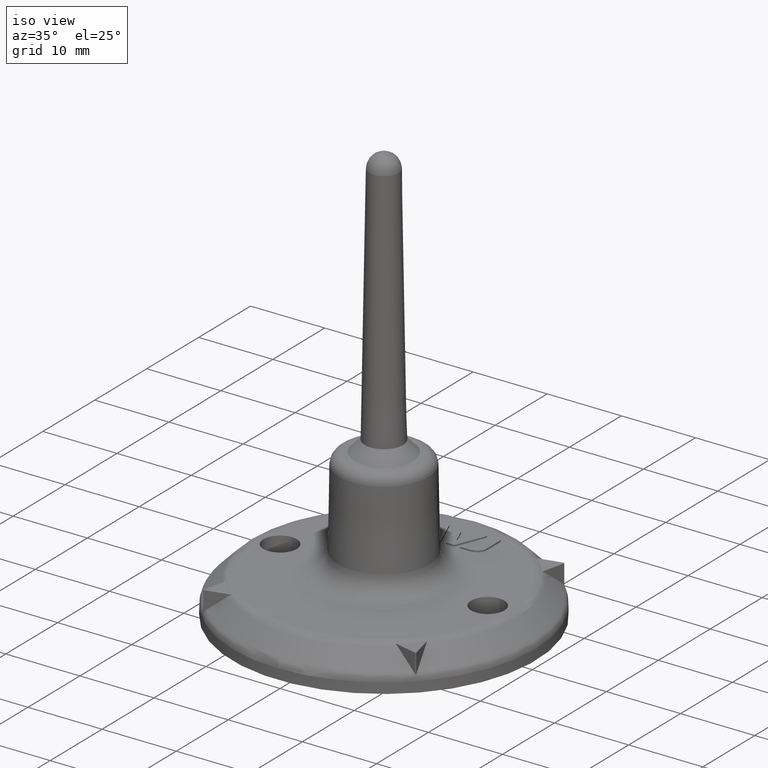
[diagram: clean part render]
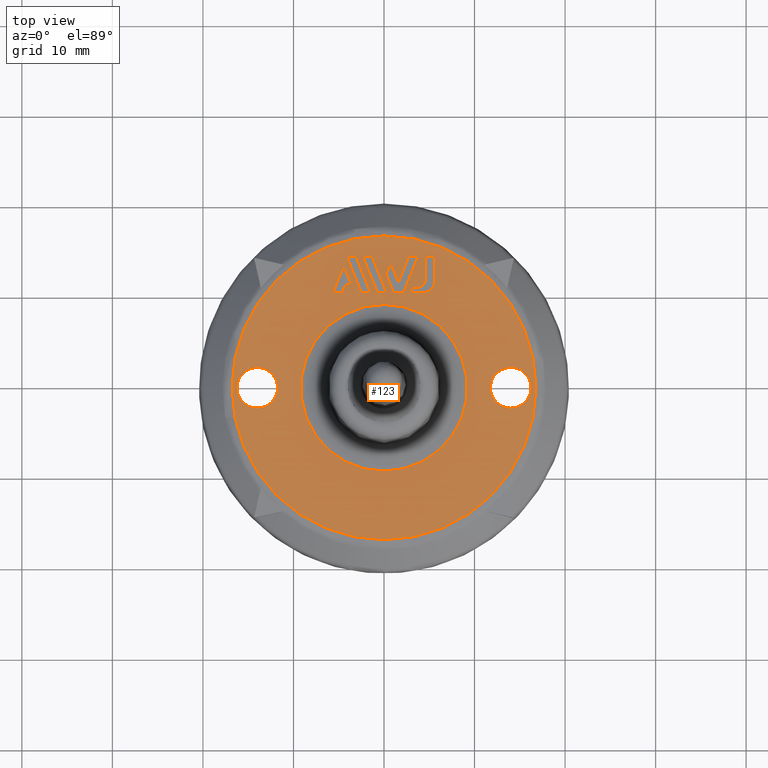
[diagram: tour spotlight — one face highlighted and labeled with its STEP entity id]
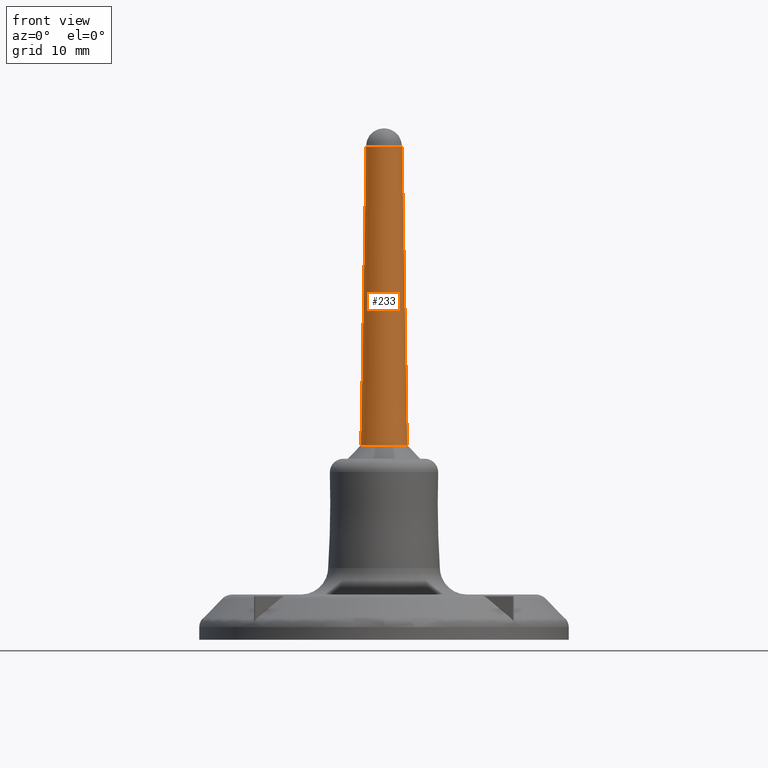
[diagram: tour spotlight — one face highlighted and labeled with its STEP entity id]
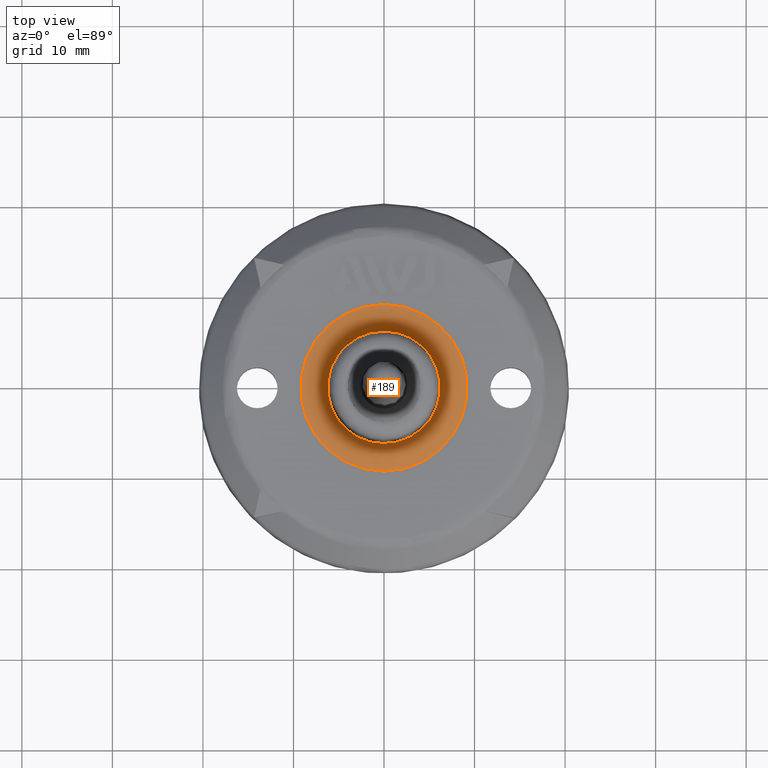
[diagram: tour spotlight — one face highlighted and labeled with its STEP entity id]
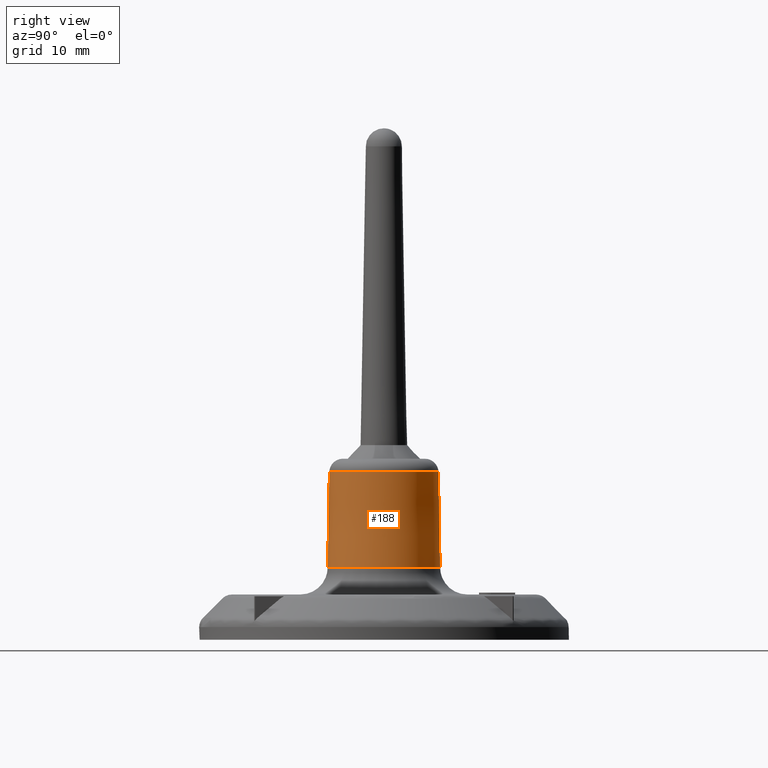
[diagram: tour spotlight — one face highlighted and labeled with its STEP entity id]
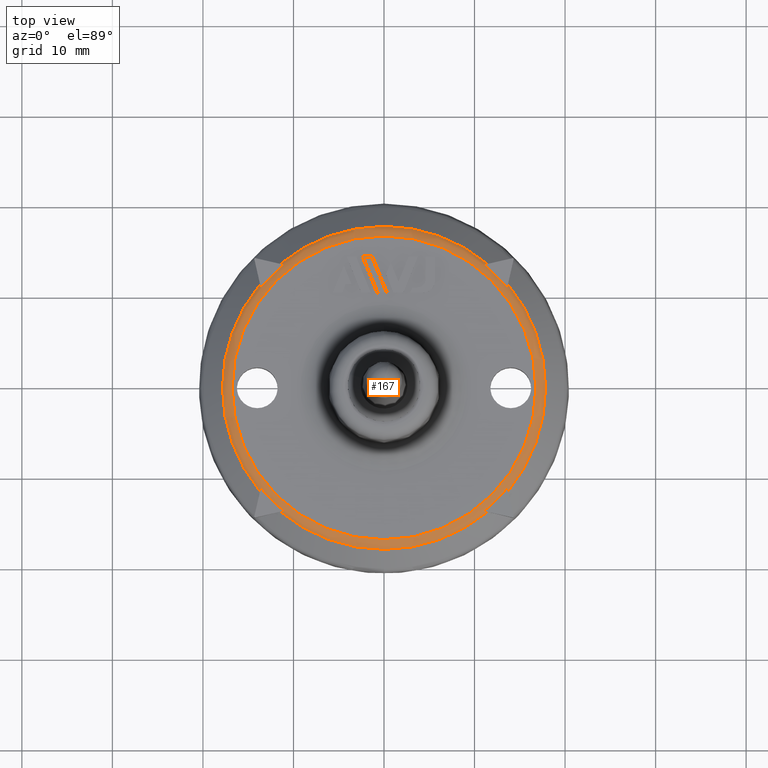
[diagram: tour spotlight — one face highlighted and labeled with its STEP entity id]
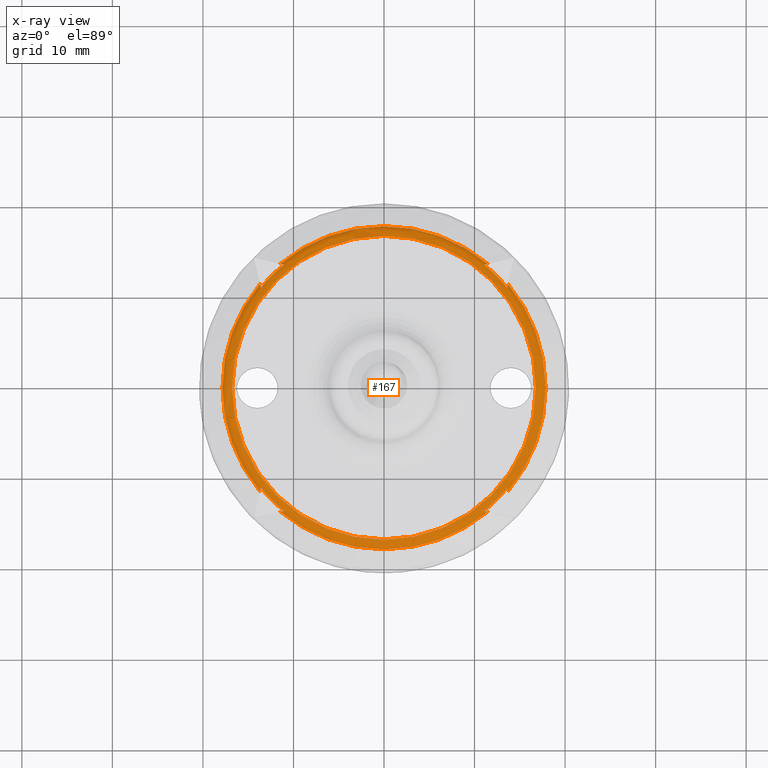
[diagram: x-ray of the same camera — body ghosted, this tour face saturated]
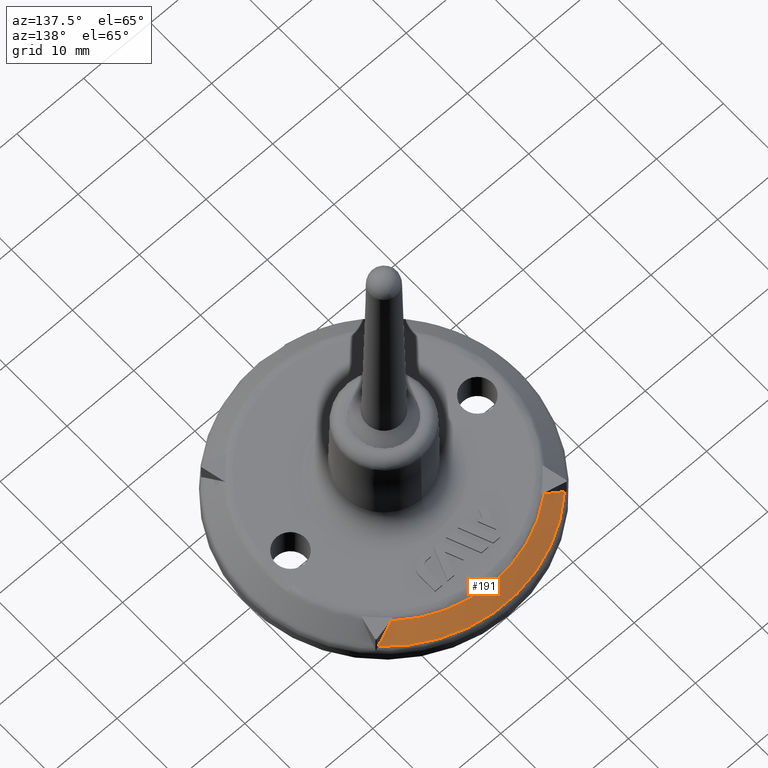
[diagram: tour spotlight — one face highlighted and labeled with its STEP entity id]
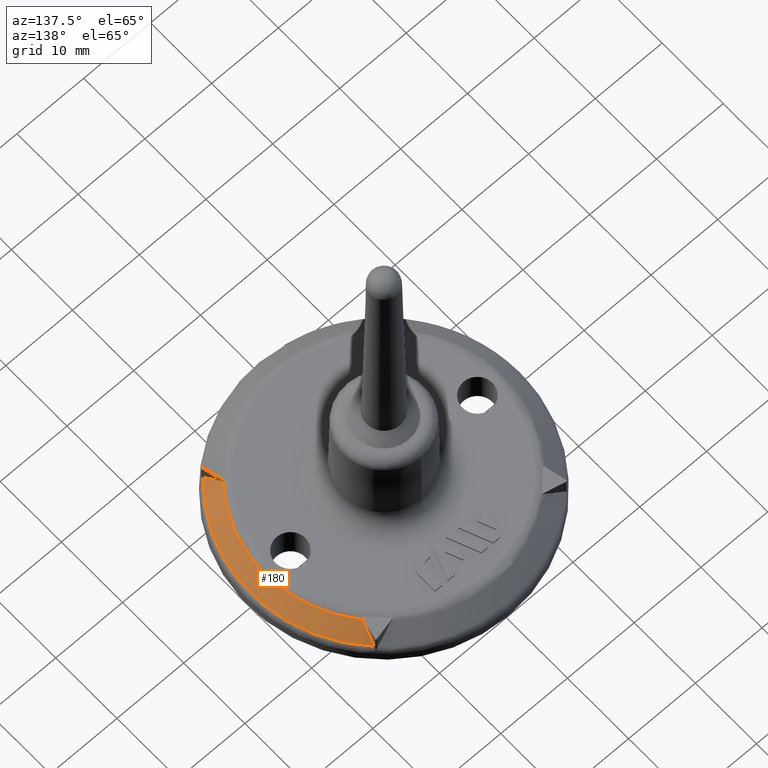
[diagram: tour spotlight — one face highlighted and labeled with its STEP entity id]
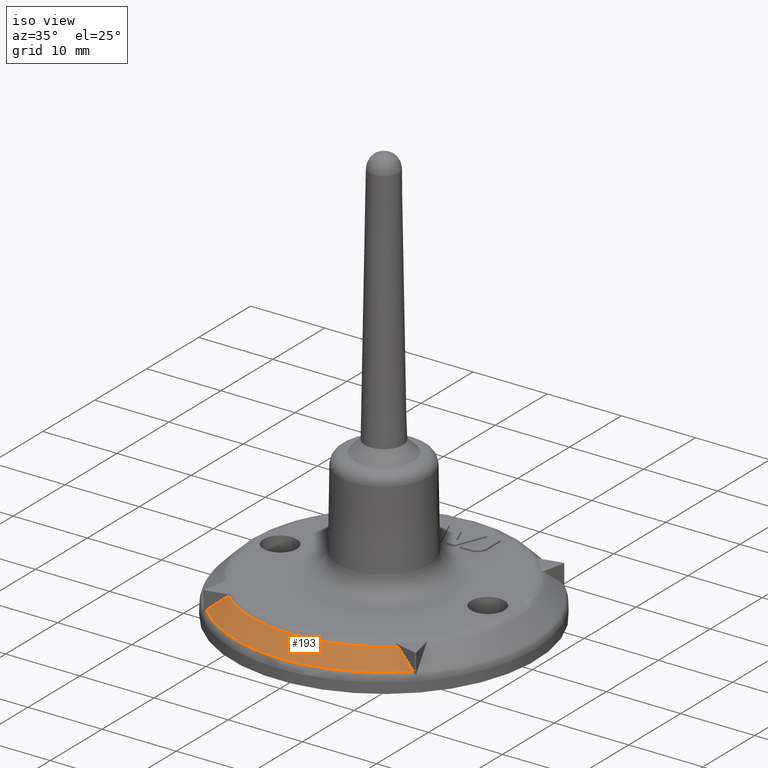
[diagram: tour spotlight — one face highlighted and labeled with its STEP entity id]
A machine part: a face-by-face anatomy tour. The part has 118 B-rep faces; the first image is the clean iso view, then the 8 largest visible faces are spotlighted one at a time (largest first), each with its STEP entity span.

Face 1 — top view, entity #123. In plain terms, the highlighted planar face has unit normal (0, -0, -1).
Definition (entity closure, byte-faithful):
#123 = ADVANCED_FACE( '', ( #242, #243, #244, #245, #246, #247, #248, #249, #250 ), #251, .F. );
#242 = FACE_BOUND( '', #518, .T. );
#243 = FACE_BOUND( '', #519, .T. );
#244 = FACE_BOUND( '', #520, .T. );
#245 = FACE_BOUND( '', #521, .T. );
#246 = FACE_OUTER_BOUND( '', #522, .T. );
#247 = FACE_BOUND( '', #523, .T. );
#248 = FACE_BOUND( '', #524, .T. );
#249 = FACE_BOUND( '', #525, .T. );
#250 = FACE_BOUND( '', #526, .T. );
#251 = PLANE( '', #527 );
#518 = EDGE_LOOP( '', ( #794, #795, #796, #797, #798, #799, #800, #801 ) );
#519 = EDGE_LOOP( '', ( #802, #803, #804, #805 ) );
#520 = EDGE_LOOP( '', ( #806 ) );
#521 = EDGE_LOOP( '', ( #807 ) );
#522 = EDGE_LOOP( '', ( #808 ) );
#523 = EDGE_LOOP( '', ( #809 ) );
#524 = EDGE_LOOP( '', ( #810, #811, #812, #813 ) );
#525 = EDGE_LOOP( '', ( #814, #815, #816, #817, #818, #819, #820 ) );
#526 = EDGE_LOOP( '', ( #821, #822, #823, #824, #825 ) );
#527 = AXIS2_PLACEMENT_3D( '', #826, #827, #828 );
#794 = ORIENTED_EDGE( '', *, *, #1678, .F. );
#795 = ORIENTED_EDGE( '', *, *, #1679, .F. );
#796 = ORIENTED_EDGE( '', *, *, #1680, .F. );
#797 = ORIENTED_EDGE( '', *, *, #1681, .F. );
#798 = ORIENTED_EDGE( '', *, *, #1682, .F. );
#799 = ORIENTED_EDGE( '', *, *, #1683, .F. );
#800 = ORIENTED_EDGE( '', *, *, #1684, .F. );
#801 = ORIENTED_EDGE( '', *, *, #1685, .F. );
#802 = ORIENTED_EDGE( '', *, *, #1686, .F. );
#803 = ORIENTED_EDGE( '', *, *, #1687, .F. );
#804 = ORIENTED_EDGE( '', *, *, #1688, .F. );
#805 = ORIENTED_EDGE( '', *, *, #1689, .F. );
#806 = ORIENTED_EDGE( '', *, *, #1690, .F. );
#807 = ORIENTED_EDGE( '', *, *, #1691, .T. );
#808 = ORIENTED_EDGE( '', *, *, #1692, .T. );
#809 = ORIENTED_EDGE( '', *, *, #1693, .F. );
#810 = ORIENTED_EDGE( '', *, *, #1694, .F. );
#811 = ORIENTED_EDGE( '', *, *, #1695, .F. );
#812 = ORIENTED_EDGE( '', *, *, #1696, .F. );
#813 = ORIENTED_EDGE( '', *, *, #1697, .F. );
#814 = ORIENTED_EDGE( '', *, *, #1698, .F. );
#815 = ORIENTED_EDGE( '', *, *, #1699, .F. );
#816 = ORIENTED_EDGE( '', *, *, #1700, .F. );
#817 = ORIENTED_EDGE( '', *, *, #1701, .F. );
#818 = ORIENTED_EDGE( '', *, *, #1702, .F. );
#819 = ORIENTED_EDGE( '', *, *, #1703, .F. );
#820 = ORIENTED_EDGE( '', *, *, #1704, .F. );
#821 = ORIENTED_EDGE( '', *, *, #1705, .F. );
#822 = ORIENTED_EDGE( '', *, *, #1706, .F. );
#823 = ORIENTED_EDGE( '', *, *, #1707, .F. );
#824 = ORIENTED_EDGE( '', *, *, #1708, .F. );
#825 = ORIENTED_EDGE( '', *, *, #1709, .F. );
#826 = CARTESIAN_POINT( '', ( 6.26367410396015, 1.30196443740726E-015, 4.99990699999999 ) );
#827 = DIRECTION( '', ( 1.12474554136660E-032, -1.83690953073357E-016, -1.00000000000000 ) );
#828 = DIRECTION( '', ( -6.12303176911189E-017, 1.00000000000000, -1.83690953073357E-016 ) );
#1678 = EDGE_CURVE( '', #1943, #1944, #1945, .F. );
#1679 = EDGE_CURVE( '', #1946, #1943, #1947, .T. );
#1680 = EDGE_CURVE( '', #1948, #1946, #1949, .T. );
#1681 = EDGE_CURVE( '', #1950, #1948, #1951, .T. );
#1682 = EDGE_CURVE( '', #1952, #1950, #1953, .T. );
#1683 = EDGE_CURVE( '', #1954, #1952, #1955, .T. );
#1684 = EDGE_CURVE( '', #1956, #1954, #1957, .T. );
#1685 = EDGE_CURVE( '', #1944, #1956, #1958, .T. );
#1686 = EDGE_CURVE( '', #1959, #1960, #1961, .T. );
#1687 = EDGE_CURVE( '', #1962, #1959, #1963, .T. );
#1688 = EDGE_CURVE( '', #1964, #1962, #1965, .T. );
#1689 = EDGE_CURVE( '', #1960, #1964, #1966, .T. );
#1690 = EDGE_CURVE( '', #1967, #1967, #1968, .F. );
#1691 = EDGE_CURVE( '', #1969, #1969, #1970, .T. );
#1692 = EDGE_CURVE( '', #1971, #1971, #1972, .F. );
#1693 = EDGE_CURVE( '', #1973, #1973, #1974, .F. );
#1694 = EDGE_CURVE( '', #1975, #1976, #1977, .T. );
#1695 = EDGE_CURVE( '', #1978, #1975, #1979, .T. );
#1696 = EDGE_CURVE( '', #1980, #1978, #1981, .T. );
#1697 = EDGE_CURVE( '', #1976, #1980, #1982, .T. );
#1698 = EDGE_CURVE( '', #1983, #1984, #1985, .T. );
#1699 = EDGE_CURVE( '', #1986, #1983, #1987, .T. );
#1700 = EDGE_CURVE( '', #1988, #1986, #1989, .T. );
#1701 = EDGE_CURVE( '', #1990, #1988, #1991, .T. );
#1702 = EDGE_CURVE( '', #1992, #1990, #1993, .T. );
#1703 = EDGE_CURVE( '', #1994, #1992, #1995, .T. );
#1704 = EDGE_CURVE( '', #1984, #1994, #1996, .T. );
#1705 = EDGE_CURVE( '', #1997, #1998, #1999, .T. );
#1706 = EDGE_CURVE( '', #2000, #1997, #2001, .T. );
#1707 = EDGE_CURVE( '', #2002, #2000, #2003, .T. );
#1708 = EDGE_CURVE( '', #2004, #2002, #2005, .T. );
#1709 = EDGE_CURVE( '', #1998, #2004, #2006, .T. );
#1943 = VERTEX_POINT( '', #2393 );
#1944 = VERTEX_POINT( '', #2394 );
#1945 = CIRCLE( '', #2395, 1.33440000000000 );
#1946 = VERTEX_POINT( '', #2396 );
#1947 = LINE( '', #2397, #2398 );
#1948 = VERTEX_POINT( '', #2399 );
#1949 = LINE( '', #2400, #2401 );
#1950 = VERTEX_POINT( '', #2402 );
#1951 = LINE( '', #2403, #2404 );
#1952 = VERTEX_POINT( '', #2405 );
#1953 = CIRCLE( '', #2406, 0.889599999999995 );
#1954 = VERTEX_POINT( '', #2407 );
#1955 = LINE( '', #2408, #2409 );
#1956 = VERTEX_POINT( '', #2410 );
#1957 = LINE( '', #2411, #2412 );
#1958 = LINE( '', #2413, #2414 );
#1959 = VERTEX_POINT( '', #2415 );
#1960 = VERTEX_POINT( '', #2416 );
#1961 = LINE( '', #2417, #2418 );
#1962 = VERTEX_POINT( '', #2419 );
#1963 = LINE( '', #2420, #2421 );
#1964 = VERTEX_POINT( '', #2422 );
#1965 = LINE( '', #2423, #2424 );
#1966 = LINE( '', #2425, #2426 );
#1967 = VERTEX_POINT( '', #2427 );
#1968 = CIRCLE( '', #2428, 2.25000000000001 );
#1969 = VERTEX_POINT( '', #2429 );
#1970 = CIRCLE( '', #2430, 9.20784984471370 );
#1971 = VERTEX_POINT( '', #2431 );
#1972 = CIRCLE( '', #2432, 16.7792036051656 );
#1973 = VERTEX_POINT( '', #2433 );
#1974 = CIRCLE( '', #2434, 2.25000000000000 );
#1975 = VERTEX_POINT( '', #2435 );
#1976 = VERTEX_POINT( '', #2436 );
#1977 = LINE( '', #2437, #2438 );
#1978 = VERTEX_POINT( '', #2439 );
#1979 = LINE( '', #2440, #2441 );
#1980 = VERTEX_POINT( '', #2442 );
#1981 = LINE( '', #2443, #2444 );
#1982 = LINE( '', #2445, #2446 );
#1983 = VERTEX_POINT( '', #2447 );
#1984 = VERTEX_POINT( '', #2448 );
#1985 = LINE( '', #2449, #2450 );
#1986 = VERTEX_POINT( '', #2451 );
#1987 = LINE( '', #2452, #2453 );
#1988 = VERTEX_POINT( '', #2454 );
#1989 = LINE( '', #2455, #2456 );
#1990 = VERTEX_POINT( '', #2457 );
#1991 = LINE( '', #2458, #2459 );
#1992 = VERTEX_POINT( '', #2460 );
#1993 = LINE( '', #2461, #2462 );
#1994 = VERTEX_POINT( '', #2463 );
#1995 = LINE( '', #2464, #2465 );
#1996 = LINE( '', #2466, #2467 );
#1997 = VERTEX_POINT( '', #2468 );
#1998 = VERTEX_POINT( '', #2469 );
#1999 = LINE( '', #2470, #2471 );
#2000 = VERTEX_POINT( '', #2472 );
#2001 = LINE( '', #2473, #2474 );
#2002 = VERTEX_POINT( '', #2475 );
#2003 = LINE( '', #2476, #2477 );
#2004 = VERTEX_POINT( '', #2478 );
#2005 = LINE( '', #2479, #2480 );
#2006 = LINE( '', #2481, #2482 );
#2393 = CARTESIAN_POINT( '', ( 4.28704891701152, 10.4994000000000, 4.99990699999999 ) );
#2394 = CARTESIAN_POINT( '', ( 5.62144891701152, 11.8338000000000, 4.99990699999999 ) );
#2395 = AXIS2_PLACEMENT_3D( '', #3175, #3176, #3177 );
#2396 = CARTESIAN_POINT( '', ( 2.88317879044305, 10.4994000000000, 4.99990699999999 ) );
#2397 = CARTESIAN_POINT( '', ( 6.26367410396015, 10.4994000000000, 4.99990699999999 ) );
#2398 = VECTOR( '', #3178, 1000.00000000000 );
#2399 = CARTESIAN_POINT( '', ( 3.11820689177645, 11.0811149637937, 4.99990699999999 ) );
#2400 = CARTESIAN_POINT( '', ( -0.289184012132563, 2.64752653307821, 4.99990699999999 ) );
#2401 = VECTOR( '', #3179, 1000.00000000000 );
#2402 = CARTESIAN_POINT( '', ( 3.68641509272283, 11.0811149637937, 4.99990699999999 ) );
#2403 = CARTESIAN_POINT( '', ( 6.26367410396015, 11.0811149637937, 4.99990699999999 ) );
#2404 = VECTOR( '', #3180, 1000.00000000000 );
#2405 = CARTESIAN_POINT( '', ( 4.57601509272282, 11.9707149637937, 4.99990699999999 ) );
#2406 = AXIS2_PLACEMENT_3D( '', #3181, #3182, #3183 );
#2407 = CARTESIAN_POINT( '', ( 4.57601509272282, 14.4996711815567, 4.99990699999999 ) );
#2408 = CARTESIAN_POINT( '', ( 4.57601509272282, 1.30109529971322E-015, 4.99990699999999 ) );
#2409 = VECTOR( '', #3184, 1000.00000000000 );
#2410 = CARTESIAN_POINT( '', ( 5.62144891701152, 14.4996711815567, 4.99990699999999 ) );
#2411 = CARTESIAN_POINT( '', ( 6.26367410396015, 14.4996711815567, 4.99990699999999 ) );
#2412 = VECTOR( '', #3185, 1000.00000000000 );
#2413 = CARTESIAN_POINT( '', ( 5.62144891701152, 1.30163369398437E-015, 4.99990699999999 ) );
#2414 = VECTOR( '', #3186, 1000.00000000000 );
#2415 = CARTESIAN_POINT( '', ( 0.302886043628969, 10.4994000000000, 4.99990699999999 ) );
#2416 = CARTESIAN_POINT( '', ( -1.31350139777566, 14.4996711815567, 4.99990699999999 ) );
#2417 = CARTESIAN_POINT( '', ( 4.78654673523565, -0.596862067544176, 4.99990699999999 ) );
#2418 = VECTOR( '', #3187, 1000.00000000000 );
#2419 = CARTESIAN_POINT( '', ( -0.730811096244652, 10.4994000000000, 4.99990699999999 ) );
#2420 = CARTESIAN_POINT( '', ( 6.26367410396015, 10.4994000000000, 4.99990699999999 ) );
#2421 = VECTOR( '', #3188, 1000.00000000000 );
#2422 = CARTESIAN_POINT( '', ( -2.34719853764928, 14.4996711815567, 4.99990699999999 ) );
#2423 = CARTESIAN_POINT( '', ( 3.89793511116535, -0.955922892234176, 4.99990699999999 ) );
#2424 = VECTOR( '', #3189, 1000.00000000000 );
#2425 = CARTESIAN_POINT( '', ( 6.26367410396015, 14.4996711815567, 4.99990699999999 ) );
#2426 = VECTOR( '', #3190, 1000.00000000000 );
#2427 = CARTESIAN_POINT( '', ( 14.0000000000000, 2.25000000000001, 4.99990699999999 ) );
#2428 = AXIS2_PLACEMENT_3D( '', #3191, #3192, #3193 );
#2429 = CARTESIAN_POINT( '', ( -5.63799571243939E-016, 9.20784984471370, 4.99990699999999 ) );
#2430 = AXIS2_PLACEMENT_3D( '', #3194, #3195, #3196 );
#2431 = CARTESIAN_POINT( '', ( -1.02739596734826E-015, 16.7792036051656, 4.99990699999998 ) );
#2432 = AXIS2_PLACEMENT_3D( '', #3197, #3198, #3199 );
#2433 = CARTESIAN_POINT( '', ( -14.0000000000000, 2.25000000000000, 4.99990699999999 ) );
#2434 = AXIS2_PLACEMENT_3D( '', #3200, #3201, #3202 );
#2435 = CARTESIAN_POINT( '', ( -1.47462014529466, 10.4994000000000, 4.99990699999999 ) );
#2436 = CARTESIAN_POINT( '', ( -3.09100758669929, 14.4996711815567, 4.99990699999999 ) );
#2437 = CARTESIAN_POINT( '', ( 3.25852406746708, -1.21428937141050, 4.99990699999999 ) );
#2438 = VECTOR( '', #3203, 1000.00000000000 );
#2439 = CARTESIAN_POINT( '', ( -2.50824376379507, 10.4994000000000, 4.99990699999999 ) );
#2440 = CARTESIAN_POINT( '', ( 6.26367410396015, 10.4994000000000, 4.99990699999999 ) );
#2441 = VECTOR( '', #3204, 1000.00000000000 );
#2442 = CARTESIAN_POINT( '', ( -4.12440395731886, 14.4996711815567, 4.99990699999999 ) );
#2443 = CARTESIAN_POINT( '', ( 2.36930922852980, -1.57337270526704, 4.99990699999999 ) );
#2444 = VECTOR( '', #3205, 1000.00000000000 );
#2445 = CARTESIAN_POINT( '', ( 6.26367410396015, 14.4996711815567, 4.99990699999999 ) );
#2446 = VECTOR( '', #3206, 1000.00000000000 );
#2447 = CARTESIAN_POINT( '', ( 2.13939647643785, 10.4994000000000, 4.99990699999999 ) );
#2448 = CARTESIAN_POINT( '', ( 3.75552993491683, 14.4996711815567, 4.99990699999999 ) );
#2449 = CARTESIAN_POINT( '', ( -0.928509667739326, 2.90568521618318, 4.99990699999999 ) );
#2450 = VECTOR( '', #3207, 1000.00000000000 );
#2451 = CARTESIAN_POINT( '', ( 1.04666835763417, 10.4994000000000, 4.99990699999999 ) );
#2452 = CARTESIAN_POINT( '', ( 6.26367410396015, 10.4994000000000, 4.99990699999999 ) );
#2453 = VECTOR( '', #3208, 1000.00000000000 );
#2454 = CARTESIAN_POINT( '', ( 0.223108669930024, 12.5374258330286, 4.99990699999999 ) );
#2455 = CARTESIAN_POINT( '', ( 5.42619726655374, -0.338421697849095, 4.99990699999999 ) );
#2456 = VECTOR( '', #3209, 1000.00000000000 );
#2457 = CARTESIAN_POINT( '', ( 0.739963923628041, 13.8169116073196, 4.99990699999999 ) );
#2458 = CARTESIAN_POINT( '', ( -3.28353860807383, 3.85664862207776, 4.99990699999999 ) );
#2459 = VECTOR( '', #3210, 1000.00000000000 );
#2460 = CARTESIAN_POINT( '', ( 1.59291879309559, 11.7058723669277, 4.99990699999999 ) );
#2461 = CARTESIAN_POINT( '', ( 6.31434582384371, 0.0204736555304223, 4.99990699999999 ) );
#2462 = VECTOR( '', #3211, 1000.00000000000 );
#2463 = CARTESIAN_POINT( '', ( 2.72181942752081, 14.4996711815567, 4.99990699999999 ) );
#2464 = CARTESIAN_POINT( '', ( -1.81763599354133, 3.26544490186125, 4.99990699999999 ) );
#2465 = VECTOR( '', #3212, 1000.00000000000 );
#2466 = CARTESIAN_POINT( '', ( 6.26367410396015, 14.4996711815567, 4.99990699999999 ) );
#2467 = VECTOR( '', #3213, 1000.00000000000 );
#2468 = CARTESIAN_POINT( '', ( -4.61880177338044, 10.4994000000000, 4.99990699999999 ) );
#2469 = CARTESIAN_POINT( '', ( -4.24524635983871, 11.4233096783808, 4.99990699999999 ) );
#2470 = CARTESIAN_POINT( '', ( -6.73840816755695, 5.25700545572004, 4.99990699999999 ) );
#2471 = VECTOR( '', #3214, 1000.00000000000 );
#2472 = CARTESIAN_POINT( '', ( -5.65219814400000, 10.4994000000000, 4.99990699999999 ) );
#2473 = CARTESIAN_POINT( '', ( 6.26367410396015, 10.4994000000000, 4.99990699999999 ) );
#2474 = VECTOR( '', #3215, 1000.00000000000 );
#2475 = CARTESIAN_POINT( '', ( -4.44055922966366, 13.4986977365248, 4.99990699999999 ) );
#2476 = CARTESIAN_POINT( '', ( -7.62682303370134, 5.61140251816718, 4.99990699999999 ) );
#2477 = VECTOR( '', #3216, 1000.00000000000 );
#2478 = CARTESIAN_POINT( '', ( -3.60243562630183, 11.4233096783808, 4.99990699999999 ) );
#2479 = CARTESIAN_POINT( '', ( 1.74730554373281, -1.82388786374384, 4.99990699999999 ) );
#2480 = VECTOR( '', #3217, 1000.00000000000 );
#2481 = CARTESIAN_POINT( '', ( 6.26367410396015, 11.4233096783808, 4.99990699999999 ) );
#2482 = VECTOR( '', #3218, 1000.00000000000 );
#3175 = CARTESIAN_POINT( '', ( 4.28704891701152, 11.8338000000000, 4.99990699999999 ) );
#3176 = DIRECTION( '', ( 1.12474554136660E-032, -1.83690953073357E-016, -1.00000000000000 ) );
#3177 = DIRECTION( '', ( 0.000000000000000, 1.00000000000000, -1.83690953073357E-016 ) );
#3178 = DIRECTION( '', ( 1.00000000000000, 6.12303176911189E-017, 0.000000000000000 ) );
#3179 = DIRECTION( '', ( -0.374606593415912, -0.927183854566787, 1.70315285919602E-016 ) );
#3180 = DIRECTION( '', ( -1.00000000000000, -6.12303176911189E-017, 0.000000000000000 ) );
#3181 = CARTESIAN_POINT( '', ( 3.68641509272283, 11.9707149637937, 4.99990699999999 ) );
#3182 = DIRECTION( '', ( 1.12474554136660E-032, -1.83690953073357E-016, -1.00000000000000 ) );
#3183 = DIRECTION( '', ( 0.000000000000000, 1.00000000000000, -1.83690953073357E-016 ) );
#3184 = DIRECTION( '', ( 5.14996031930612E-019, -1.00000000000000, 1.83690953073357E-016 ) );
#3185 = DIRECTION( '', ( -1.00000000000000, -6.12303176911189E-017, 0.000000000000000 ) );
#3186 = DIRECTION( '', ( -5.14996031930612E-019, 1.00000000000000, -1.83690953073357E-016 ) );
#3187 = DIRECTION( '', ( -0.374641058409019, 0.927169929060563, -1.70312727930091E-016 ) );
#3188 = DIRECTION( '', ( 1.00000000000000, -1.60814287233912E-016, 4.07875851034759E-032 ) );
#3189 = DIRECTION( '', ( 0.374641058409020, -0.927169929060563, 1.70312727930091E-016 ) );
#3190 = DIRECTION( '', ( -1.00000000000000, 1.60814287233912E-016, -4.07875851034759E-032 ) );
#3191 = CARTESIAN_POINT( '', ( 14.0000000000000, 9.18437682108146E-016, 4.99990699999999 ) );
#3192 = DIRECTION( '', ( 1.12474554136660E-032, -1.83690953073357E-016, -1.00000000000000 ) );
#3193 = DIRECTION( '', ( 0.000000000000000, 1.00000000000000, -1.83690953073357E-016 ) );
#3194 = CARTESIAN_POINT( '', ( -5.62362310549765E-032, 9.18437682108145E-016, 4.99990699999999 ) );
#3195 = DIRECTION( '', ( 1.12474554136660E-032, -1.83690953073357E-016, -1.00000000000000 ) );
#3196 = DIRECTION( '', ( -6.12303176911189E-017, 1.00000000000000, -1.83690953073357E-016 ) );
#3197 = CARTESIAN_POINT( '', ( -5.62362310549765E-032, 9.18437682108145E-016, 4.99990699999999 ) );
#3198 = DIRECTION( '', ( 1.12474554136660E-032, -1.83690953073357E-016, -1.00000000000000 ) );
#3199 = DIRECTION( '', ( -6.12303176911189E-017, 1.00000000000000, -1.83690953073357E-016 ) );
#3200 = CARTESIAN_POINT( '', ( -14.0000000000000, 9.18437682108146E-016, 4.99990699999999 ) );
#3201 = DIRECTION( '', ( 1.12474554136660E-032, -1.83690953073357E-016, -1.00000000000000 ) );
#3202 = DIRECTION( '', ( 0.000000000000000, 1.00000000000000, -1.83690953073357E-016 ) );
#3203 = DIRECTION( '', ( -0.374641058409020, 0.927169929060563, -1.70312727930091E-016 ) );
#3204 = DIRECTION( '', ( 1.00000000000000, 6.12303176911189E-017, 0.000000000000000 ) );
#3205 = DIRECTION( '', ( 0.374595778945159, -0.927188223823226, 1.70316088512481E-016 ) );
#3206 = DIRECTION( '', ( -1.00000000000000, -6.12303176911189E-017, 0.000000000000000 ) );
#3207 = DIRECTION( '', ( 0.374590451773198, 0.927190376050330, -1.70316483857129E-016 ) );
#3208 = DIRECTION( '', ( 1.00000000000000, 6.12303176911189E-017, 0.000000000000000 ) );
#3209 = DIRECTION( '', ( 0.374662832411421, -0.927161130553612, 1.70311111723964E-016 ) );
#3210 = DIRECTION( '', ( -0.374550179126525, -0.927206645422846, 1.70319472393672E-016 ) );
#3211 = DIRECTION( '', ( -0.374621565025663, 0.927177805503196, -1.70314174761345E-016 ) );
#3212 = DIRECTION( '', ( -0.374644435760503, -0.927168564368796, 1.70312477248560E-016 ) );
#3213 = DIRECTION( '', ( -1.00000000000000, -6.12303176911189E-017, 0.000000000000000 ) );
#3214 = DIRECTION( '', ( 0.374840934415178, 0.927089140205383, -1.70297887748286E-016 ) );
#3215 = DIRECTION( '', ( 1.00000000000000, 1.16741468922377E-016, -1.01968962758690E-032 ) );
#3216 = DIRECTION( '', ( -0.374565126786346, -0.927200607094025, 1.70318363207296E-016 ) );
#3217 = DIRECTION( '', ( -0.374457717202846, 0.927243990558706, -1.70326332357271E-016 ) );
#3218 = DIRECTION( '', ( 1.00000000000000, 6.12303176911189E-017, 0.000000000000000 ) );

Face 2 — front view, entity #233. In plain terms, the highlighted conical surface has half-angle 1 deg.
Definition (entity closure, byte-faithful):
#233 = ADVANCED_FACE( '', ( #496, #497 ), #498, .T. );
#496 = FACE_OUTER_BOUND( '', #772, .T. );
#497 = FACE_BOUND( '', #773, .T. );
#498 = CONICAL_SURFACE( '', #774, 2.00000000000000, 0.0174532925199433 );
#772 = EDGE_LOOP( '', ( #1640 ) );
#773 = EDGE_LOOP( '', ( #1641 ) );
#774 = AXIS2_PLACEMENT_3D( '', #1642, #1643, #1644 );
#1640 = ORIENTED_EDGE( '', *, *, #1936, .F. );
#1641 = ORIENTED_EDGE( '', *, *, #1937, .T. );
#1642 = CARTESIAN_POINT( '', ( 3.93659776769266E-024, 6.42911502195647E-015, 54.4996279999965 ) );
#1643 = DIRECTION( '', ( -7.42616500954294E-026, 4.89772725781145E-026, -1.00000000000000 ) );
#1644 = DIRECTION( '', ( -0.951505468930490, 0.307631829620031, 8.57273341706079E-026 ) );
#1936 = EDGE_CURVE( '', #2379, #2379, #2380, .T. );
#1937 = EDGE_CURVE( '', #2381, #2381, #2382, .T. );
#2379 = VERTEX_POINT( '', #3161 );
#2380 = CIRCLE( '', #3162, 2.57601714263118 );
#2381 = VERTEX_POINT( '', #3163 );
#2382 = CIRCLE( '', #3164, 2.00000000000000 );
#3161 = CARTESIAN_POINT( '', ( -2.45109439927226, 0.792464866720202, 21.4996279999966 ) );
#3162 = AXIS2_PLACEMENT_3D( '', #3513, #3514, #3515 );
#3163 = CARTESIAN_POINT( '', ( -1.90301093786098, 0.615263659240069, 54.4996279999965 ) );
#3164 = AXIS2_PLACEMENT_3D( '', #3516, #3517, #3518 );
#3513 = CARTESIAN_POINT( '', ( 1.48596331454350E-024, 6.42911502357272E-015, 21.4996279999966 ) );
#3514 = DIRECTION( '', ( -7.42616500954294E-026, 4.89772725781145E-026, -1.00000000000000 ) );
#3515 = DIRECTION( '', ( -0.951505468930490, 0.307631829620031, 8.57273341706079E-026 ) );
#3516 = CARTESIAN_POINT( '', ( 3.93659776769266E-024, 6.42911502195647E-015, 54.4996279999965 ) );
#3517 = DIRECTION( '', ( -7.42616500954294E-026, 4.89772725781145E-026, -1.00000000000000 ) );
#3518 = DIRECTION( '', ( -0.951505468930490, 0.307631829620031, 8.57273341706079E-026 ) );

Face 3 — top view, entity #189. In plain terms, the highlighted toroidal blend (fillet) surface has major radius 9.2078 mm and minor (blend) radius 2.996 mm.
Definition (entity closure, byte-faithful):
#189 = ADVANCED_FACE( '', ( #390, #391 ), #392, .F. );
#390 = FACE_OUTER_BOUND( '', #666, .T. );
#391 = FACE_OUTER_BOUND( '', #667, .T. );
#392 = TOROIDAL_SURFACE( '', #668, 9.20784984471370, 2.99601500000000 );
#666 = EDGE_LOOP( '', ( #1307 ) );
#667 = EDGE_LOOP( '', ( #1308 ) );
#668 = AXIS2_PLACEMENT_3D( '', #1309, #1310, #1311 );
#1307 = ORIENTED_EDGE( '', *, *, #1883, .F. );
#1308 = ORIENTED_EDGE( '', *, *, #1691, .F. );
#1309 = CARTESIAN_POINT( '', ( -8.99337761861512E-032, 1.46877853288022E-015, 7.99592199999999 ) );
#1310 = DIRECTION( '', ( 1.12474554136660E-032, -1.83690953073357E-016, -1.00000000000000 ) );
#1311 = DIRECTION( '', ( -6.12303176911189E-017, 1.00000000000000, -1.83690953073357E-016 ) );
#1691 = EDGE_CURVE( '', #1969, #1969, #1970, .T. );
#1883 = EDGE_CURVE( '', #2298, #2298, #2299, .F. );
#1969 = VERTEX_POINT( '', #2429 );
#1970 = CIRCLE( '', #2430, 9.20784984471370 );
#2298 = VERTEX_POINT( '', #3034 );
#2299 = CIRCLE( '', #3035, 6.21229115230973 );
#2429 = CARTESIAN_POINT( '', ( -5.63799571243939E-016, 9.20784984471370, 4.99990699999999 ) );
#2430 = AXIS2_PLACEMENT_3D( '', #3194, #3195, #3196 );
#3034 = CARTESIAN_POINT( '', ( -3.80380560845652E-016, 6.21229115230973, 7.94363432852779 ) );
#3035 = AXIS2_PLACEMENT_3D( '', #3446, #3447, #3448 );
#3194 = CARTESIAN_POINT( '', ( -5.62362310549765E-032, 9.18437682108145E-016, 4.99990699999999 ) );
#3195 = DIRECTION( '', ( 1.12474554136660E-032, -1.83690953073357E-016, -1.00000000000000 ) );
#3196 = DIRECTION( '', ( -6.12303176911189E-017, 1.00000000000000, -1.83690953073357E-016 ) );
#3446 = CARTESIAN_POINT( '', ( -8.93456729325832E-032, 1.45917376067350E-015, 7.94363432852779 ) );
#3447 = DIRECTION( '', ( 1.12474554136660E-032, -1.83690953073357E-016, -1.00000000000000 ) );
#3448 = DIRECTION( '', ( -6.12303176911189E-017, 1.00000000000000, -1.83690953073357E-016 ) );

Face 4 — right view, entity #188. In plain terms, the highlighted conical surface has half-angle 1 deg.
Definition (entity closure, byte-faithful):
#188 = ADVANCED_FACE( '', ( #387, #388 ), #389, .T. );
#387 = FACE_BOUND( '', #663, .T. );
#388 = FACE_OUTER_BOUND( '', #664, .T. );
#389 = CONICAL_SURFACE( '', #665, 6.00185299999999, 0.0174532925199436 );
#663 = EDGE_LOOP( '', ( #1302 ) );
#664 = EDGE_LOOP( '', ( #1303 ) );
#665 = AXIS2_PLACEMENT_3D( '', #1304, #1305, #1306 );
#1302 = ORIENTED_EDGE( '', *, *, #1872, .T. );
#1303 = ORIENTED_EDGE( '', *, *, #1883, .T. );
#1304 = CARTESIAN_POINT( '', ( -2.24944924219907E-031, 3.67375072843259E-015, 19.9996280000000 ) );
#1305 = DIRECTION( '', ( 1.12474554136660E-032, -1.83690953073357E-016, -1.00000000000000 ) );
#1306 = DIRECTION( '', ( -6.12303176911189E-017, 1.00000000000000, -1.83690953073357E-016 ) );
#1872 = EDGE_CURVE( '', #2280, #2280, #2281, .F. );
#1883 = EDGE_CURVE( '', #2298, #2298, #2299, .F. );
#2280 = VERTEX_POINT( '', #3009 );
#2281 = CIRCLE( '', #3010, 6.02762871017217 );
#2298 = VERTEX_POINT( '', #3034 );
#2299 = CIRCLE( '', #3035, 6.21229115230973 );
#3009 = CARTESIAN_POINT( '', ( 3.69073620847951E-016, -6.02762871017217, 18.5229385532303 ) );
#3010 = AXIS2_PLACEMENT_3D( '', #3424, #3425, #3426 );
#3034 = CARTESIAN_POINT( '', ( -3.80380560845652E-016, 6.21229115230973, 7.94363432852779 ) );
#3035 = AXIS2_PLACEMENT_3D( '', #3446, #3447, #3448 );
#3424 = CARTESIAN_POINT( '', ( -2.08335925507533E-031, 3.40249623656209E-015, 18.5229385532303 ) );
#3425 = DIRECTION( '', ( -1.12474554136660E-032, 1.83690953073357E-016, 1.00000000000000 ) );
#3426 = DIRECTION( '', ( 6.12303176911189E-017, -1.00000000000000, 1.83690953073357E-016 ) );
#3446 = CARTESIAN_POINT( '', ( -8.93456729325832E-032, 1.45917376067350E-015, 7.94363432852779 ) );
#3447 = DIRECTION( '', ( 1.12474554136660E-032, -1.83690953073357E-016, -1.00000000000000 ) );
#3448 = DIRECTION( '', ( -6.12303176911189E-017, 1.00000000000000, -1.83690953073357E-016 ) );

Face 5 — top view, entity #167. An x-ray twin of the same camera follows (body ghosted, this face saturated) — the face is partly hidden behind the body. In plain terms, the highlighted toroidal blend (fillet) surface has major radius 16.7792 mm and minor (blend) radius 1.5029 mm.
Definition (entity closure, byte-faithful):
#167 = ADVANCED_FACE( '', ( #339, #340 ), #341, .T. );
#339 = FACE_OUTER_BOUND( '', #615, .T. );
#340 = FACE_OUTER_BOUND( '', #616, .T. );
#341 = TOROIDAL_SURFACE( '', #617, 16.7792036051656, 1.50291900000000 );
#615 = EDGE_LOOP( '', ( #1131 ) );
#616 = EDGE_LOOP( '', ( #1132, #1133, #1134, #1135, #1136, #1137, #1138, #1139, #1140, #1141, #1142, #1143, #1144, #1145, #1146, #1147 ) );
#617 = AXIS2_PLACEMENT_3D( '', #1148, #1149, #1150 );
#1131 = ORIENTED_EDGE( '', *, *, #1692, .F. );
#1132 = ORIENTED_EDGE( '', *, *, #1832, .F. );
#1133 = ORIENTED_EDGE( '', *, *, #1833, .F. );
#1134 = ORIENTED_EDGE( '', *, *, #1834, .F. );
#1135 = ORIENTED_EDGE( '', *, *, #1835, .F. );
#1136 = ORIENTED_EDGE( '', *, *, #1836, .F. );
#1137 = ORIENTED_EDGE( '', *, *, #1821, .F. );
#1138 = ORIENTED_EDGE( '', *, *, #1837, .F. );
#1139 = ORIENTED_EDGE( '', *, *, #1838, .F. );
#1140 = ORIENTED_EDGE( '', *, *, #1839, .F. );
#1141 = ORIENTED_EDGE( '', *, *, #1840, .F. );
#1142 = ORIENTED_EDGE( '', *, *, #1829, .F. );
#1143 = ORIENTED_EDGE( '', *, *, #1841, .F. );
#1144 = ORIENTED_EDGE( '', *, *, #1826, .F. );
#1145 = ORIENTED_EDGE( '', *, *, #1842, .F. );
#1146 = ORIENTED_EDGE( '', *, *, #1843, .F. );
#1147 = ORIENTED_EDGE( '', *, *, #1844, .F. );
#1148 = CARTESIAN_POINT( '', ( -3.93322166121250E-032, 6.42365058606089E-016, 3.49698799999999 ) );
#1149 = DIRECTION( '', ( 1.12474554136660E-032, -1.83690953073357E-016, -1.00000000000000 ) );
#1150 = DIRECTION( '', ( -6.12303176911189E-017, 1.00000000000000, -1.83690953073357E-016 ) );
#1692 = EDGE_CURVE( '', #1971, #1971, #1972, .F. );
#1821 = EDGE_CURVE( '', #2193, #2195, #2196, .F. );
#1826 = EDGE_CURVE( '', #2202, #2204, #2205, .T. );
#1829 = EDGE_CURVE( '', #2207, #2209, #2210, .T. );
#1832 = EDGE_CURVE( '', #2214, #2215, #2216, .T. );
#1833 = EDGE_CURVE( '', #2217, #2214, #2218, .F. );
#1834 = EDGE_CURVE( '', #2219, #2217, #2220, .T. );
#1835 = EDGE_CURVE( '', #2221, #2219, #2222, .T. );
#1836 = EDGE_CURVE( '', #2195, #2221, #2223, .T. );
#1837 = EDGE_CURVE( '', #2224, #2193, #2225, .T. );
#1838 = EDGE_CURVE( '', #2226, #2224, #2227, .T. );
#1839 = EDGE_CURVE( '', #2228, #2226, #2229, .T. );
#1840 = EDGE_CURVE( '', #2209, #2228, #2230, .F. );
#1841 = EDGE_CURVE( '', #2204, #2207, #2231, .T. );
#1842 = EDGE_CURVE( '', #2232, #2202, #2233, .F. );
#1843 = EDGE_CURVE( '', #2234, #2232, #2235, .T. );
#1844 = EDGE_CURVE( '', #2215, #2234, #2236, .T. );
#1971 = VERTEX_POINT( '', #2431 );
#1972 = CIRCLE( '', #2432, 16.7792036051656 );
#2193 = VERTEX_POINT( '', #2816 );
#2195 = VERTEX_POINT( '', #2821 );
#2196 = CIRCLE( '', #2822, 17.8415794446095 );
#2202 = VERTEX_POINT( '', #2834 );
#2204 = VERTEX_POINT( '', #2839 );
#2205 = B_SPLINE_CURVE_WITH_KNOTS( '', 3, ( #2840, #2841, #2842, #2843 ), .UNSPECIFIED., .F., .F., ( 4, 4 ), ( 0.000000000000000, 0.000461087044999416 ), .UNSPECIFIED. );
#2207 = VERTEX_POINT( '', #2846 );
#2209 = VERTEX_POINT( '', #2849 );
#2210 = B_SPLINE_CURVE_WITH_KNOTS( '', 3, ( #2850, #2851, #2852, #2853 ), .UNSPECIFIED., .F., .F., ( 4, 4 ), ( 0.000000000000000, 0.000461087055120101 ), .UNSPECIFIED. );
#2214 = VERTEX_POINT( '', #2863 );
#2215 = VERTEX_POINT( '', #2864 );
#2216 = B_SPLINE_CURVE_WITH_KNOTS( '', 3, ( #2865, #2866, #2867, #2868 ), .UNSPECIFIED., .F., .F., ( 4, 4 ), ( 0.000000000000000, 0.000461087031759523 ), .UNSPECIFIED. );
#2217 = VERTEX_POINT( '', #2869 );
#2218 = CIRCLE( '', #2870, 17.8415794446095 );
#2219 = VERTEX_POINT( '', #2871 );
#2220 = B_SPLINE_CURVE_WITH_KNOTS( '', 3, ( #2872, #2873, #2874, #2875 ), .UNSPECIFIED., .F., .F., ( 4, 4 ), ( 0.000000000000000, 0.000461086959000810 ), .UNSPECIFIED. );
#2221 = VERTEX_POINT( '', #2876 );
#2222 = CIRCLE( '', #2877, 17.5289913355756 );
#2223 = B_SPLINE_CURVE_WITH_KNOTS( '', 3, ( #2878, #2879, #2880, #2881 ), .UNSPECIFIED., .F., .F., ( 4, 4 ), ( 0.000000000000000, 0.000461086982641299 ), .UNSPECIFIED. );
#2224 = VERTEX_POINT( '', #2882 );
#2225 = B_SPLINE_CURVE_WITH_KNOTS( '', 3, ( #2883, #2884, #2885, #2886 ), .UNSPECIFIED., .F., .F., ( 4, 4 ), ( 0.000000000000000, 0.000461086959000808 ), .UNSPECIFIED. );
#2226 = VERTEX_POINT( '', #2887 );
#2227 = CIRCLE( '', #2888, 17.5289913355756 );
#2228 = VERTEX_POINT( '', #2889 );
#2229 = B_SPLINE_CURVE_WITH_KNOTS( '', 3, ( #2890, #2891, #2892, #2893 ), .UNSPECIFIED., .F., .F., ( 4, 4 ), ( 0.000000000000000, 0.000461087055120099 ), .UNSPECIFIED. );
#2230 = CIRCLE( '', #2894, 17.8415794446095 );
#2231 = CIRCLE( '', #2895, 17.5289913355756 );
#2232 = VERTEX_POINT( '', #2896 );
#2233 = CIRCLE( '', #2897, 17.8415794446095 );
#2234 = VERTEX_POINT( '', #2898 );
#2235 = B_SPLINE_CURVE_WITH_KNOTS( '', 3, ( #2899, #2900, #2901, #2902 ), .UNSPECIFIED., .F., .F., ( 4, 4 ), ( 0.000000000000000, 0.000461087077301471 ), .UNSPECIFIED. );
#2236 = CIRCLE( '', #2903, 17.5289913355756 );
#2431 = CARTESIAN_POINT( '', ( -1.02739596734826E-015, 16.7792036051656, 4.99990699999998 ) );
#2432 = AXIS2_PLACEMENT_3D( '', #3197, #3198, #3199 );
#2816 = CARTESIAN_POINT( '', ( -13.6898716455001, -11.4415633288482, 4.56006047933854 ) );
#2821 = CARTESIAN_POINT( '', ( -13.6898716497305, 11.4415633237865, 4.56006047933853 ) );
#2822 = AXIS2_PLACEMENT_3D( '', #3366, #3367, #3368 );
#2834 = CARTESIAN_POINT( '', ( 13.6898715559076, -11.4415634360459, 4.56006047933853 ) );
#2839 = CARTESIAN_POINT( '', ( 13.6012696779304, -11.0576218234707, 4.79951780000000 ) );
#2840 = CARTESIAN_POINT( '', ( 13.6898715559076, -11.4415634360459, 4.56006047933854 ) );
#2841 = CARTESIAN_POINT( '', ( 13.6626250345439, -11.3234951333387, 4.65661906492836 ) );
#2842 = CARTESIAN_POINT( '', ( 13.6329619470431, -11.1949550401826, 4.73549321139625 ) );
#2843 = CARTESIAN_POINT( '', ( 13.6012696779303, -11.0576218234706, 4.79951779999989 ) );
#2846 = CARTESIAN_POINT( '', ( 11.0576217295459, -13.6012697542898, 4.79951780000000 ) );
#2849 = CARTESIAN_POINT( '', ( 11.4415633565678, -13.6898716223329, 4.56006047933853 ) );
#2850 = CARTESIAN_POINT( '', ( 11.0576217295459, -13.6012697542898, 4.79951780000000 ) );
#2851 = CARTESIAN_POINT( '', ( 11.1949549510102, -13.6329620197534, 4.73549321164471 ) );
#2852 = CARTESIAN_POINT( '', ( 11.3234950490486, -13.6626251039389, 4.65661906531081 ) );
#2853 = CARTESIAN_POINT( '', ( 11.4415633565678, -13.6898716223329, 4.56006047933853 ) );
#2863 = CARTESIAN_POINT( '', ( 11.4415634122110, 13.6898715758281, 4.56006047933853 ) );
#2864 = CARTESIAN_POINT( '', ( 11.0576218193622, 13.6012696812705, 4.79951780000000 ) );
#2865 = CARTESIAN_POINT( '', ( 11.4415634122110, 13.6898715758281, 4.56006047933853 ) );
#2866 = CARTESIAN_POINT( '', ( 11.3234951160532, 13.6626250494772, 4.65661906442802 ) );
#2867 = CARTESIAN_POINT( '', ( 11.1949550295612, 13.6329619564393, 4.73549321107135 ) );
#2868 = CARTESIAN_POINT( '', ( 11.0576218193621, 13.6012696812705, 4.79951779999989 ) );
#2869 = CARTESIAN_POINT( '', ( -11.4415633288482, 13.6898716455001, 4.56006047933853 ) );
#2870 = AXIS2_PLACEMENT_3D( '', #3374, #3375, #3376 );
#2871 = CARTESIAN_POINT( '', ( -11.0576218440961, 13.6012696611623, 4.79951780000000 ) );
#2872 = CARTESIAN_POINT( '', ( -11.0576218440961, 13.6012696611623, 4.79951780000000 ) );
#2873 = CARTESIAN_POINT( '', ( -11.1949550186142, 13.6329619691336, 4.73549320928601 ) );
#2874 = CARTESIAN_POINT( '', ( -11.3234950685874, 13.6626250921531, 4.65661906167849 ) );
#2875 = CARTESIAN_POINT( '', ( -11.4415633288482, 13.6898716455001, 4.56006047933853 ) );
#2876 = CARTESIAN_POINT( '', ( -13.6012696936621, 11.0576218041201, 4.79951780000000 ) );
#2877 = AXIS2_PLACEMENT_3D( '', #3377, #3378, #3379 );
#2878 = CARTESIAN_POINT( '', ( -13.6898716497305, 11.4415633237865, 4.56006047933853 ) );
#2879 = CARTESIAN_POINT( '', ( -13.6626251048777, 11.3234950519262, 4.65661906257186 ) );
#2880 = CARTESIAN_POINT( '', ( -13.6329619912978, 11.1949549901571, 4.73549320986603 ) );
#2881 = CARTESIAN_POINT( '', ( -13.6012696936621, 11.0576218041201, 4.79951779999989 ) );
#2882 = CARTESIAN_POINT( '', ( -13.6012696611623, -11.0576218440961, 4.79951780000000 ) );
#2883 = CARTESIAN_POINT( '', ( -13.6012696611623, -11.0576218440961, 4.79951780000000 ) );
#2884 = CARTESIAN_POINT( '', ( -13.6329619691336, -11.1949550186142, 4.73549320928602 ) );
#2885 = CARTESIAN_POINT( '', ( -13.6626250921531, -11.3234950685874, 4.65661906167849 ) );
#2886 = CARTESIAN_POINT( '', ( -13.6898716455001, -11.4415633288482, 4.56006047933853 ) );
#2887 = CARTESIAN_POINT( '', ( -11.0576217295459, -13.6012697542898, 4.79951780000000 ) );
#2888 = AXIS2_PLACEMENT_3D( '', #3380, #3381, #3382 );
#2889 = CARTESIAN_POINT( '', ( -11.4415633565678, -13.6898716223329, 4.56006047933853 ) );
#2890 = CARTESIAN_POINT( '', ( -11.4415633565678, -13.6898716223329, 4.56006047933854 ) );
#2891 = CARTESIAN_POINT( '', ( -11.3234950490486, -13.6626251039389, 4.65661906531081 ) );
#2892 = CARTESIAN_POINT( '', ( -11.1949549510101, -13.6329620197534, 4.73549321164461 ) );
#2893 = CARTESIAN_POINT( '', ( -11.0576217295458, -13.6012697542898, 4.79951779999989 ) );
#2894 = AXIS2_PLACEMENT_3D( '', #3383, #3384, #3385 );
#2895 = AXIS2_PLACEMENT_3D( '', #3386, #3387, #3388 );
#2896 = CARTESIAN_POINT( '', ( 13.6898716169867, 11.4415633629646, 4.56006047933853 ) );
#2897 = AXIS2_PLACEMENT_3D( '', #3389, #3390, #3391 );
#2898 = CARTESIAN_POINT( '', ( 13.6012697757808, 11.0576217031112, 4.79951780000000 ) );
#2899 = CARTESIAN_POINT( '', ( 13.6012697757808, 11.0576217031112, 4.79951780000000 ) );
#2900 = CARTESIAN_POINT( '', ( 13.6329620314349, 11.1949549354093, 4.73549321218902 ) );
#2901 = CARTESIAN_POINT( '', ( 13.6626251066587, 11.3234950445397, 4.65661906614903 ) );
#2902 = CARTESIAN_POINT( '', ( 13.6898716169867, 11.4415633629646, 4.56006047933853 ) );
#2903 = AXIS2_PLACEMENT_3D( '', #3392, #3393, #3394 );
#3197 = CARTESIAN_POINT( '', ( -5.62362310549765E-032, 9.18437682108145E-016, 4.99990699999999 ) );
#3198 = DIRECTION( '', ( 1.12474554136660E-032, -1.83690953073357E-016, -1.00000000000000 ) );
#3199 = DIRECTION( '', ( -6.12303176911189E-017, 1.00000000000000, -1.83690953073357E-016 ) );
#3366 = CARTESIAN_POINT( '', ( -5.12890769249807E-032, 8.37641855521842E-016, 4.56006047933853 ) );
#3367 = DIRECTION( '', ( -1.12474554136660E-032, 1.83690953073357E-016, 1.00000000000000 ) );
#3368 = DIRECTION( '', ( 6.12303176911189E-017, -1.00000000000000, 1.83690953073357E-016 ) );
#3374 = CARTESIAN_POINT( '', ( -5.12890769249807E-032, 8.37641855521842E-016, 4.56006047933853 ) );
#3375 = DIRECTION( '', ( -1.12474554136660E-032, 1.83690953073357E-016, 1.00000000000000 ) );
#3376 = DIRECTION( '', ( 6.12303176911189E-017, -1.00000000000000, 1.83690953073357E-016 ) );
#3377 = CARTESIAN_POINT( '', ( -5.39823624625965E-032, 8.81627998974540E-016, 4.79951780000000 ) );
#3378 = DIRECTION( '', ( 1.12474554136660E-032, -1.83690953073357E-016, -1.00000000000000 ) );
#3379 = DIRECTION( '', ( -6.12303176911189E-017, 1.00000000000000, -1.83690953073357E-016 ) );
#3380 = CARTESIAN_POINT( '', ( -5.39823624625965E-032, 8.81627998974540E-016, 4.79951780000000 ) );
#3381 = DIRECTION( '', ( 1.12474554136660E-032, -1.83690953073357E-016, -1.00000000000000 ) );
#3382 = DIRECTION( '', ( -6.12303176911189E-017, 1.00000000000000, -1.83690953073357E-016 ) );
#3383 = CARTESIAN_POINT( '', ( -5.12890769249807E-032, 8.37641855521842E-016, 4.56006047933853 ) );
#3384 = DIRECTION( '', ( -1.12474554136660E-032, 1.83690953073357E-016, 1.00000000000000 ) );
#3385 = DIRECTION( '', ( 6.12303176911189E-017, -1.00000000000000, 1.83690953073357E-016 ) );
#3386 = CARTESIAN_POINT( '', ( -5.39823624625965E-032, 8.81627998974540E-016, 4.79951780000000 ) );
#3387 = DIRECTION( '', ( 1.12474554136660E-032, -1.83690953073357E-016, -1.00000000000000 ) );
#3388 = DIRECTION( '', ( -6.12303176911189E-017, 1.00000000000000, -1.83690953073357E-016 ) );
#3389 = CARTESIAN_POINT( '', ( -5.12890769249807E-032, 8.37641855521842E-016, 4.56006047933853 ) );
#3390 = DIRECTION( '', ( -1.12474554136660E-032, 1.83690953073357E-016, 1.00000000000000 ) );
#3391 = DIRECTION( '', ( 6.12303176911189E-017, -1.00000000000000, 1.83690953073357E-016 ) );
#3392 = CARTESIAN_POINT( '', ( -5.39823624625965E-032, 8.81627998974540E-016, 4.79951780000000 ) );
#3393 = DIRECTION( '', ( 1.12474554136660E-032, -1.83690953073357E-016, -1.00000000000000 ) );
#3394 = DIRECTION( '', ( -6.12303176911189E-017, 1.00000000000000, -1.83690953073357E-016 ) );

Face 6 — auxiliary view, entity #191. In plain terms, the highlighted conical surface has half-angle 45.019 deg.
Definition (entity closure, byte-faithful):
#191 = ADVANCED_FACE( '', ( #396 ), #397, .T. );
#396 = FACE_OUTER_BOUND( '', #672, .T. );
#397 = CONICAL_SURFACE( '', #673, 17.4014445000000, 0.785725924775414 );
#672 = EDGE_LOOP( '', ( #1317, #1318, #1319, #1320 ) );
#673 = AXIS2_PLACEMENT_3D( '', #1321, #1322, #1323 );
#1317 = ORIENTED_EDGE( '', *, *, #1852, .T. );
#1318 = ORIENTED_EDGE( '', *, *, #1833, .T. );
#1319 = ORIENTED_EDGE( '', *, *, #1862, .T. );
#1320 = ORIENTED_EDGE( '', *, *, #1869, .T. );
#1321 = CARTESIAN_POINT( '', ( -5.62362310549768E-032, 9.18437682108149E-016, 4.99990700000001 ) );
#1322 = DIRECTION( '', ( 1.12474554136660E-032, -1.83690953073357E-016, -1.00000000000000 ) );
#1323 = DIRECTION( '', ( -6.12303176911189E-017, 1.00000000000000, -1.83690953073357E-016 ) );
#1833 = EDGE_CURVE( '', #2217, #2214, #2218, .F. );
#1852 = EDGE_CURVE( '', #2249, #2217, #2250, .T. );
#1862 = EDGE_CURVE( '', #2214, #2265, #2266, .T. );
#1869 = EDGE_CURVE( '', #2265, #2249, #2276, .T. );
#2214 = VERTEX_POINT( '', #2863 );
#2217 = VERTEX_POINT( '', #2869 );
#2218 = CIRCLE( '', #2870, 17.8415794446095 );
#2249 = VERTEX_POINT( '', #2931 );
#2250 = B_SPLINE_CURVE_WITH_KNOTS( '', 3, ( #2932, #2933, #2934, #2935 ), .UNSPECIFIED., .F., .F., ( 4, 4 ), ( 3.05060832803879E-007, 0.00335306184498531 ), .UNSPECIFIED. );
#2265 = VERTEX_POINT( '', #2972 );
#2266 = B_SPLINE_CURVE_WITH_KNOTS( '', 3, ( #2973, #2974, #2975, #2976 ), .UNSPECIFIED., .F., .F., ( 4, 4 ), ( 0.000385435667210572, 0.00373819280744096 ), .UNSPECIFIED. );
#2276 = CIRCLE( '', #3005, 19.9697122692104 );
#2863 = CARTESIAN_POINT( '', ( 11.4415634122110, 13.6898715758281, 4.56006047933853 ) );
#2869 = CARTESIAN_POINT( '', ( -11.4415633288482, 13.6898716455001, 4.56006047933853 ) );
#2870 = AXIS2_PLACEMENT_3D( '', #3374, #3375, #3376 );
#2931 = CARTESIAN_POINT( '', ( -13.9670967925117, 14.2726877393033, 2.43332223719148 ) );
#2932 = CARTESIAN_POINT( '', ( -13.9670967925117, 14.2726877393033, 2.43332223719148 ) );
#2933 = CARTESIAN_POINT( '', ( -13.1338692891234, 14.0804042452372, 3.15304951781219 ) );
#2934 = CARTESIAN_POINT( '', ( -12.2932664902280, 13.8864187579170, 3.86352061624888 ) );
#2935 = CARTESIAN_POINT( '', ( -11.4415633288482, 13.6898716455001, 4.56006047933853 ) );
#2972 = CARTESIAN_POINT( '', ( 13.9670974900426, 14.2726870567072, 2.43332223719148 ) );
#2973 = CARTESIAN_POINT( '', ( 11.4415634122110, 13.6898715758281, 4.56006047933853 ) );
#2974 = CARTESIAN_POINT( '', ( 12.2932667894459, 13.8864184835601, 3.86352063165685 ) );
#2975 = CARTESIAN_POINT( '', ( 13.1338697914963, 14.0804037665815, 3.15304953107168 ) );
#2976 = CARTESIAN_POINT( '', ( 13.9670974900426, 14.2726870567072, 2.43332223719148 ) );
#3005 = AXIS2_PLACEMENT_3D( '', #3415, #3416, #3417 );
#3374 = CARTESIAN_POINT( '', ( -5.12890769249807E-032, 8.37641855521842E-016, 4.56006047933853 ) );
#3375 = DIRECTION( '', ( -1.12474554136660E-032, 1.83690953073357E-016, 1.00000000000000 ) );
#3376 = DIRECTION( '', ( 6.12303176911189E-017, -1.00000000000000, 1.83690953073357E-016 ) );
#3415 = CARTESIAN_POINT( '', ( -2.73686833698932E-032, 4.46979280884295E-016, 2.43332223719148 ) );
#3416 = DIRECTION( '', ( -1.12474554136660E-032, 1.83690953073357E-016, 1.00000000000000 ) );
#3417 = DIRECTION( '', ( 6.12303176911189E-017, -1.00000000000000, 1.83690953073357E-016 ) );

Face 7 — auxiliary view, entity #180. In plain terms, the highlighted conical surface has half-angle 45.019 deg.
Definition (entity closure, byte-faithful):
#180 = ADVANCED_FACE( '', ( #369 ), #370, .T. );
#369 = FACE_OUTER_BOUND( '', #645, .T. );
#370 = CONICAL_SURFACE( '', #646, 17.4014445000000, 0.785725924775414 );
#645 = EDGE_LOOP( '', ( #1248, #1249, #1250, #1251 ) );
#646 = AXIS2_PLACEMENT_3D( '', #1252, #1253, #1254 );
#1248 = ORIENTED_EDGE( '', *, *, #1855, .T. );
#1249 = ORIENTED_EDGE( '', *, *, #1842, .T. );
#1250 = ORIENTED_EDGE( '', *, *, #1825, .F. );
#1251 = ORIENTED_EDGE( '', *, *, #1870, .T. );
#1252 = CARTESIAN_POINT( '', ( -5.62362310549768E-032, 9.18437682108149E-016, 4.99990700000001 ) );
#1253 = DIRECTION( '', ( 1.12474554136660E-032, -1.83690953073357E-016, -1.00000000000000 ) );
#1254 = DIRECTION( '', ( -6.12303176911189E-017, 1.00000000000000, -1.83690953073357E-016 ) );
#1825 = EDGE_CURVE( '', #2200, #2202, #2203, .T. );
#1842 = EDGE_CURVE( '', #2232, #2202, #2233, .F. );
#1855 = EDGE_CURVE( '', #2253, #2232, #2254, .T. );
#1870 = EDGE_CURVE( '', #2200, #2253, #2277, .T. );
#2200 = VERTEX_POINT( '', #2829 );
#2202 = VERTEX_POINT( '', #2834 );
#2203 = B_SPLINE_CURVE_WITH_KNOTS( '', 3, ( #2835, #2836, #2837, #2838 ), .UNSPECIFIED., .F., .F., ( 4, 4 ), ( 3.05060864453904E-007, 0.00335306226589028 ), .UNSPECIFIED. );
#2232 = VERTEX_POINT( '', #2896 );
#2233 = CIRCLE( '', #2897, 17.8415794446095 );
#2253 = VERTEX_POINT( '', #2942 );
#2254 = B_SPLINE_CURVE_WITH_KNOTS( '', 3, ( #2943, #2944, #2945, #2946 ), .UNSPECIFIED., .F., .F., ( 4, 4 ), ( 3.05060876343129E-007, 0.00335306242398698 ), .UNSPECIFIED. );
#2277 = CIRCLE( '', #3006, 19.9697122692104 );
#2829 = CARTESIAN_POINT( '', ( 14.2726869236544, -13.9670976260064, 2.43332223719148 ) );
#2834 = CARTESIAN_POINT( '', ( 13.6898715559076, -11.4415634360459, 4.56006047933853 ) );
#2835 = CARTESIAN_POINT( '', ( 14.2726869236544, -13.9670976260064, 2.43332223719148 ) );
#2836 = CARTESIAN_POINT( '', ( 14.0804036711671, -13.1338698918256, 3.15304953348452 ) );
#2837 = CARTESIAN_POINT( '', ( 13.8864184258540, -12.2932668526844, 3.86352063446064 ) );
#2838 = CARTESIAN_POINT( '', ( 13.6898715559076, -11.4415634360459, 4.56006047933853 ) );
#2896 = CARTESIAN_POINT( '', ( 13.6898716169867, 11.4415633629646, 4.56006047933853 ) );
#2897 = AXIS2_PLACEMENT_3D( '', #3389, #3390, #3391 );
#2942 = CARTESIAN_POINT( '', ( 14.2726867329288, 13.9670978209050, 2.43332223719148 ) );
#2943 = CARTESIAN_POINT( '', ( 14.2726867329288, 13.9670978209050, 2.43332223719147 ) );
#2944 = CARTESIAN_POINT( '', ( 14.0804035642825, 13.1338700016279, 3.15304953937121 ) );
#2945 = CARTESIAN_POINT( '', ( 13.8864184029102, 12.2932668738538, 3.86352064130118 ) );
#2946 = CARTESIAN_POINT( '', ( 13.6898716169867, 11.4415633629646, 4.56006047933853 ) );
#3006 = AXIS2_PLACEMENT_3D( '', #3418, #3419, #3420 );
#3389 = CARTESIAN_POINT( '', ( -5.12890769249807E-032, 8.37641855521842E-016, 4.56006047933853 ) );
#3390 = DIRECTION( '', ( -1.12474554136660E-032, 1.83690953073357E-016, 1.00000000000000 ) );
#3391 = DIRECTION( '', ( 6.12303176911189E-017, -1.00000000000000, 1.83690953073357E-016 ) );
#3418 = CARTESIAN_POINT( '', ( -2.73686833698932E-032, 4.46979280884295E-016, 2.43332223719148 ) );
#3419 = DIRECTION( '', ( -1.12474554136660E-032, 1.83690953073357E-016, 1.00000000000000 ) );
#3420 = DIRECTION( '', ( 6.12303176911189E-017, -1.00000000000000, 1.83690953073357E-016 ) );

Face 8 — iso view, entity #193. In plain terms, the highlighted conical surface has half-angle 45.019 deg.
Definition (entity closure, byte-faithful):
#193 = ADVANCED_FACE( '', ( #411 ), #412, .T. );
#411 = FACE_OUTER_BOUND( '', #687, .T. );
#412 = CONICAL_SURFACE( '', #688, 17.4014445000000, 0.785725924775414 );
#687 = EDGE_LOOP( '', ( #1363, #1364, #1365, #1366 ) );
#688 = AXIS2_PLACEMENT_3D( '', #1367, #1368, #1369 );
#1363 = ORIENTED_EDGE( '', *, *, #1830, .F. );
#1364 = ORIENTED_EDGE( '', *, *, #1840, .T. );
#1365 = ORIENTED_EDGE( '', *, *, #1875, .T. );
#1366 = ORIENTED_EDGE( '', *, *, #1865, .T. );
#1367 = CARTESIAN_POINT( '', ( -5.62362310549768E-032, 9.18437682108149E-016, 4.99990700000001 ) );
#1368 = DIRECTION( '', ( 1.12474554136660E-032, -1.83690953073357E-016, -1.00000000000000 ) );
#1369 = DIRECTION( '', ( -6.12303176911189E-017, 1.00000000000000, -1.83690953073357E-016 ) );
#1830 = EDGE_CURVE( '', #2209, #2211, #2212, .T. );
#1840 = EDGE_CURVE( '', #2209, #2228, #2230, .F. );
#1865 = EDGE_CURVE( '', #2269, #2211, #2270, .T. );
#1875 = EDGE_CURVE( '', #2228, #2269, #2285, .T. );
#2209 = VERTEX_POINT( '', #2849 );
#2211 = VERTEX_POINT( '', #2854 );
#2212 = B_SPLINE_CURVE_WITH_KNOTS( '', 3, ( #2855, #2856, #2857, #2858 ), .UNSPECIFIED., .F., .F., ( 4, 4 ), ( 0.000385435683478267, 0.00373819293803427 ), .UNSPECIFIED. );
#2228 = VERTEX_POINT( '', #2889 );
#2230 = CIRCLE( '', #2894, 17.8415794446095 );
#2269 = VERTEX_POINT( '', #2983 );
#2270 = CIRCLE( '', #2984, 19.9697122692104 );
#2285 = B_SPLINE_CURVE_WITH_KNOTS( '', 3, ( #3016, #3017, #3018, #3019 ), .UNSPECIFIED., .F., .F., ( 4, 4 ), ( 0.000385435683478267, 0.00373819293803426 ), .UNSPECIFIED. );
#2849 = CARTESIAN_POINT( '', ( 11.4415633565678, -13.6898716223329, 4.56006047933853 ) );
#2854 = CARTESIAN_POINT( '', ( 13.9670976280813, -14.2726869216240, 2.43332223719148 ) );
#2855 = CARTESIAN_POINT( '', ( 11.4415633565678, -13.6898716223329, 4.56006047933853 ) );
#2856 = CARTESIAN_POINT( '', ( 12.2932668019240, -13.8864184694739, 3.86352063660388 ) );
#2857 = CARTESIAN_POINT( '', ( 13.1338698680334, -14.0804036919615, 3.15304953532890 ) );
#2858 = CARTESIAN_POINT( '', ( 13.9670976280813, -14.2726869216240, 2.43332223719148 ) );
#2889 = CARTESIAN_POINT( '', ( -11.4415633565678, -13.6898716223329, 4.56006047933853 ) );
#2894 = AXIS2_PLACEMENT_3D( '', #3383, #3384, #3385 );
#2983 = CARTESIAN_POINT( '', ( -13.9670976280813, -14.2726869216240, 2.43332223719148 ) );
#2984 = AXIS2_PLACEMENT_3D( '', #3412, #3413, #3414 );
#3016 = CARTESIAN_POINT( '', ( -11.4415633565678, -13.6898716223329, 4.56006047933853 ) );
#3017 = CARTESIAN_POINT( '', ( -12.2932668019240, -13.8864184694739, 3.86352063660388 ) );
#3018 = CARTESIAN_POINT( '', ( -13.1338698680334, -14.0804036919615, 3.15304953532890 ) );
#3019 = CARTESIAN_POINT( '', ( -13.9670976280813, -14.2726869216240, 2.43332223719148 ) );
#3383 = CARTESIAN_POINT( '', ( -5.12890769249807E-032, 8.37641855521842E-016, 4.56006047933853 ) );
#3384 = DIRECTION( '', ( -1.12474554136660E-032, 1.83690953073357E-016, 1.00000000000000 ) );
#3385 = DIRECTION( '', ( 6.12303176911189E-017, -1.00000000000000, 1.83690953073357E-016 ) );
#3412 = CARTESIAN_POINT( '', ( -2.73686833698932E-032, 4.46979280884295E-016, 2.43332223719148 ) );
#3413 = DIRECTION( '', ( -1.12474554136660E-032, 1.83690953073357E-016, 1.00000000000000 ) );
#3414 = DIRECTION( '', ( 6.12303176911189E-017, -1.00000000000000, 1.83690953073357E-016 ) );